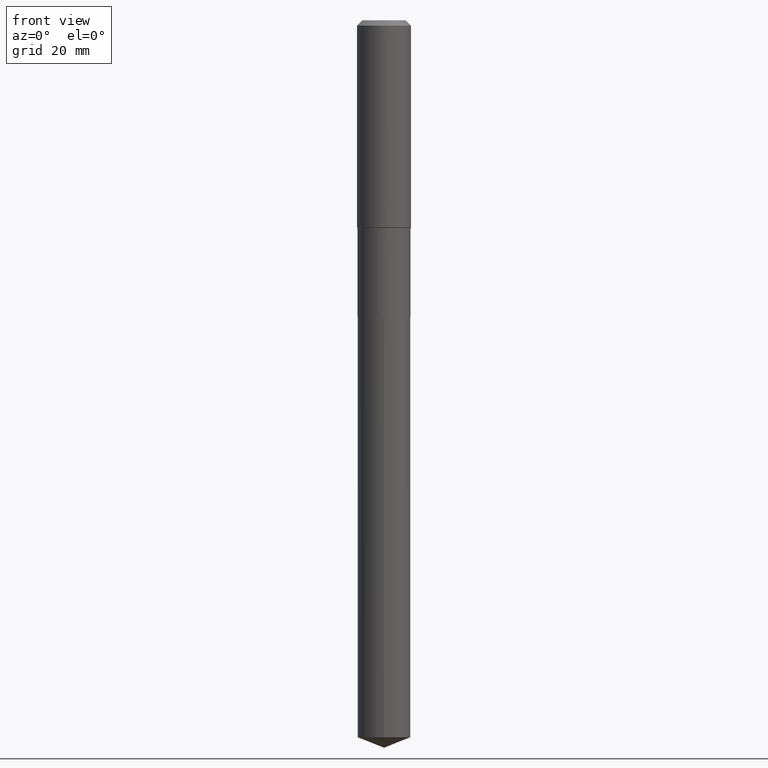
[diagram: clean part render]
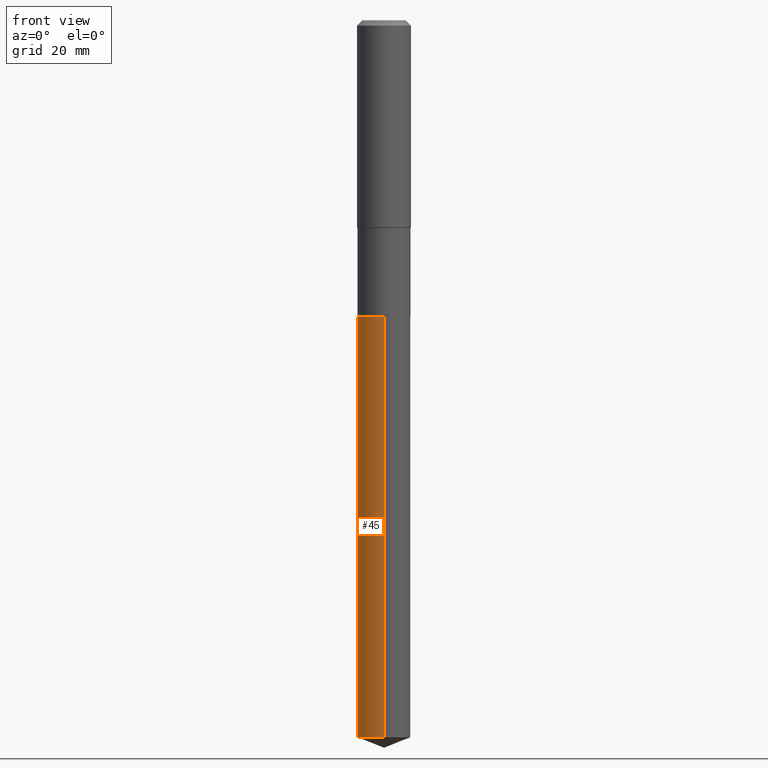
[diagram: same view with one face highlighted and labeled with its STEP entity id]
A machine part, front view. The second image highlights one B-rep face of the part: STEP entity #45.
In plain terms, the highlighted cylindrical surface (edge-blend (fillet) strip) has radius 5.9004 mm, axis along (-0, 0, 1).
Its self-contained STEP definition (entity closure, byte-faithful):
#19 = CARTESIAN_POINT ( 'NONE',  ( -1.622142230026456186E-15, -0.2323000000000090826, -2.598400000000000265 ) ) ;
#36 = DIRECTION ( 'NONE',  ( -2.445449169258695004E-29, 3.491509460039474509E-15, 1.000000000000000000 ) ) ;
#45 = ADVANCED_FACE ( 'NONE', ( #227 ), #379, .T. ) ;
#49 = ORIENTED_EDGE ( 'NONE', *, *, #443, .F. ) ;
#53 = ORIENTED_EDGE ( 'NONE', *, *, #349, .F. ) ;
#59 = LINE ( 'NONE', #350, #201 ) ;
#73 = EDGE_LOOP ( 'NONE', ( #53, #209, #356, #49 ) ) ;
#80 = VECTOR ( 'NONE', #400, 39.37007874015748143 ) ;
#89 = CARTESIAN_POINT ( 'NONE',  ( 1.650590775170866606E-15, 0.2322999999999908749, -2.598400000000001597 ) ) ;
#100 = VERTEX_POINT ( 'NONE', #89 ) ;
#104 = DIRECTION ( 'NONE',  ( -2.445449169258695004E-29, 3.491509460039474509E-15, 1.000000000000000000 ) ) ;
#141 = CARTESIAN_POINT ( 'NONE',  ( 1.537310946826876849E-28, -2.194893313315539797E-14, -6.286394596514650601 ) ) ;
#175 = VERTEX_POINT ( 'NONE', #19 ) ;
#177 = DIRECTION ( 'NONE',  ( -6.982962677686265922E-15, -1.000000000000000000, 4.703999989090422785E-15 ) ) ;
#193 = EDGE_CURVE ( 'NONE', #249, #175, #59, .T. ) ;
#201 = VECTOR ( 'NONE', #267, 39.37007874015748143 ) ;
#209 = ORIENTED_EDGE ( 'NONE', *, *, #423, .T. ) ;
#221 = CARTESIAN_POINT ( 'NONE',  ( 6.354306145991460877E-29, -9.072265110850034200E-15, -2.598400000000000709 ) ) ;
#227 = FACE_OUTER_BOUND ( 'NONE', #73, .T. ) ;
#235 = CARTESIAN_POINT ( 'NONE',  ( -1.622142230026366058E-15, -0.2323000000000219611, -6.286394596514649713 ) ) ;
#249 = VERTEX_POINT ( 'NONE', #235 ) ;
#259 = AXIS2_PLACEMENT_3D ( 'NONE', #141, #446, #177 ) ;
#267 = DIRECTION ( 'NONE',  ( -2.445449169258695004E-29, 3.491509460039474509E-15, 1.000000000000000000 ) ) ;
#272 = CIRCLE ( 'NONE', #259, 0.2323000000000000065 ) ;
#289 = AXIS2_PLACEMENT_3D ( 'NONE', #359, #104, #410 ) ;
#298 = CIRCLE ( 'NONE', #289, 0.2323000000000000065 ) ;
#332 = DIRECTION ( 'NONE',  ( -6.982962677686265922E-15, -1.000000000000000000, 2.351999994545211393E-15 ) ) ;
#339 = CARTESIAN_POINT ( 'NONE',  ( 1.650590775170866606E-15, 0.2322999999999781073, -6.286394596514651489 ) ) ;
#349 = EDGE_CURVE ( 'NONE', #489, #100, #416, .T. ) ;
#350 = CARTESIAN_POINT ( 'NONE',  ( -1.622142230026456186E-15, -0.2323000000000090826, -2.598400000000000265 ) ) ;
#356 = ORIENTED_EDGE ( 'NONE', *, *, #193, .T. ) ;
#359 = CARTESIAN_POINT ( 'NONE',  ( 6.354306145991460877E-29, -9.072265110850034200E-15, -2.598400000000000709 ) ) ;
#379 = CYLINDRICAL_SURFACE ( 'NONE', #386, 0.2323000000000000065 ) ;
#386 = AXIS2_PLACEMENT_3D ( 'NONE', #221, #36, #332 ) ;
#400 = DIRECTION ( 'NONE',  ( -2.445449169258695004E-29, 3.491509460039474509E-15, 1.000000000000000000 ) ) ;
#410 = DIRECTION ( 'NONE',  ( -6.982962677686265922E-15, -1.000000000000000000, 2.351999994545211393E-15 ) ) ;
#416 = LINE ( 'NONE', #445, #80 ) ;
#423 = EDGE_CURVE ( 'NONE', #489, #249, #272, .T. ) ;
#443 = EDGE_CURVE ( 'NONE', #100, #175, #298, .T. ) ;
#445 = CARTESIAN_POINT ( 'NONE',  ( 1.650590775170776084E-15, 0.2322999999999909304, -2.598400000000001597 ) ) ;
#446 = DIRECTION ( 'NONE',  ( -2.445449169258695004E-29, 3.491509460039474509E-15, 1.000000000000000000 ) ) ;
#489 = VERTEX_POINT ( 'NONE', #339 ) ;